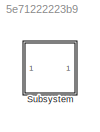
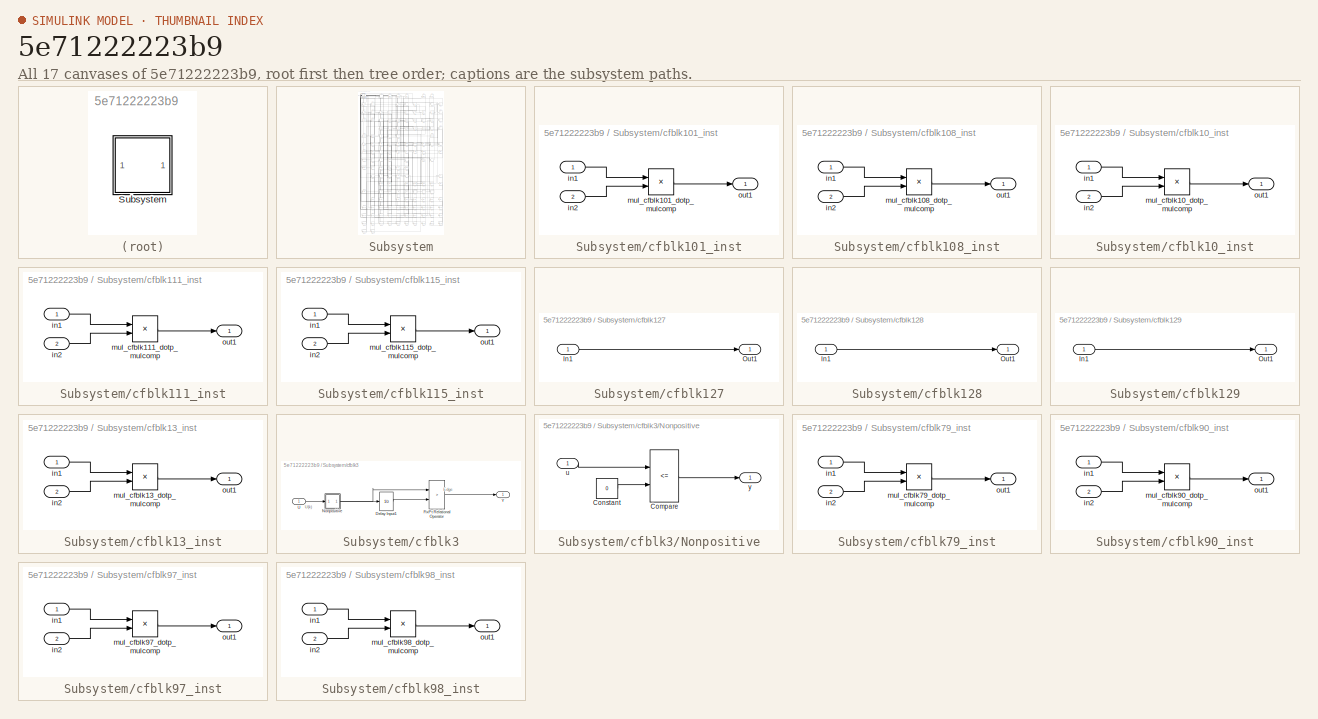
[diagram: thumbnail index - all 17 canvases of the model, root first then tree order]
MODEL slx_5e71222223b9
KIND model
CONFIG AbsTol = auto
CONFIG EnableMultiTasking = off
CONFIG FixedStep = auto
CONFIG MaxStep = auto
CONFIG MinStep = auto
CONFIG RelTol = 1e-3
CONFIG SampleTimeConstraint = Unconstrained
CONFIG SolverName = VariableStepAuto
CONFIG StartTime = 0.0
CONFIG StopTime = 10.0
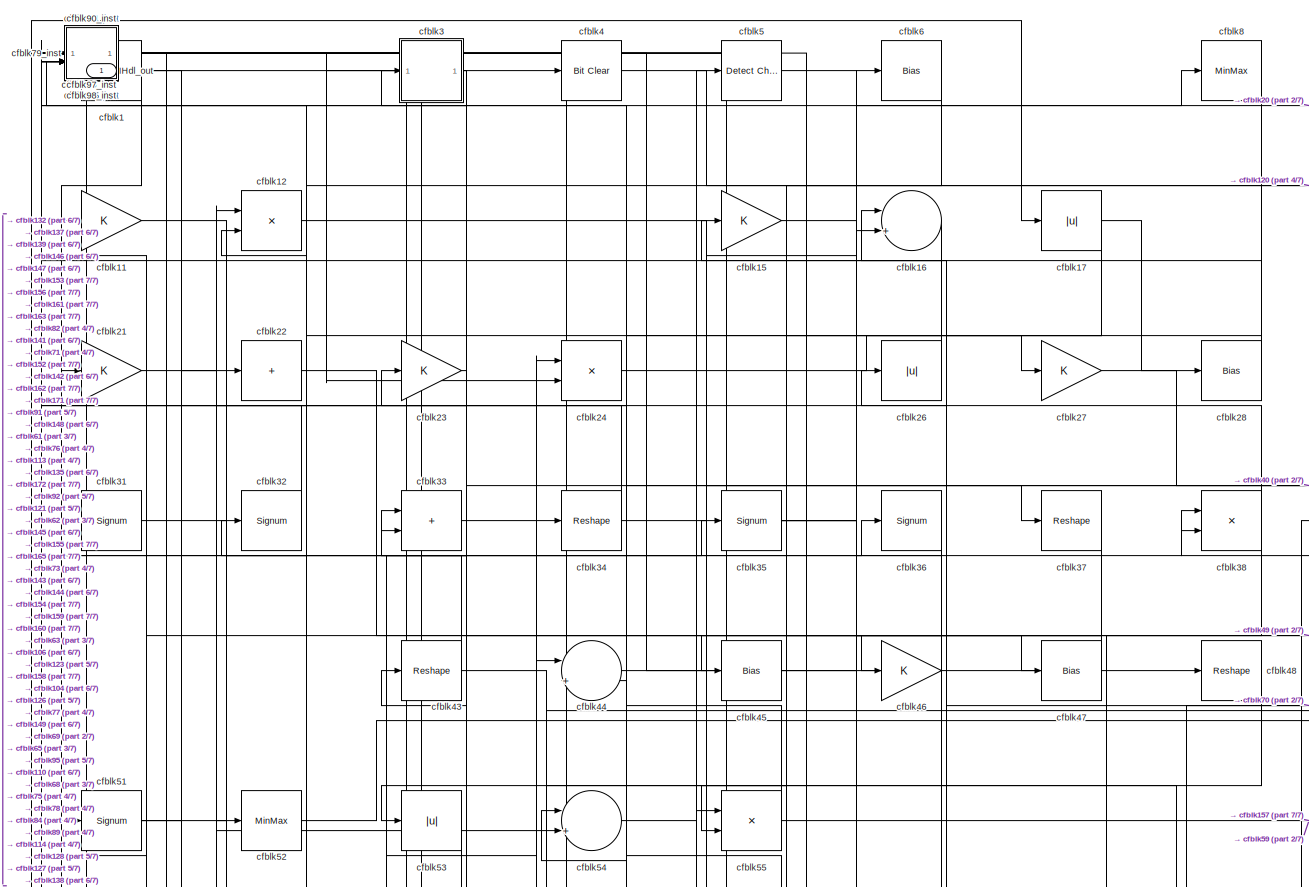
[diagram: Subsystem - part 1/7, full width, top band]
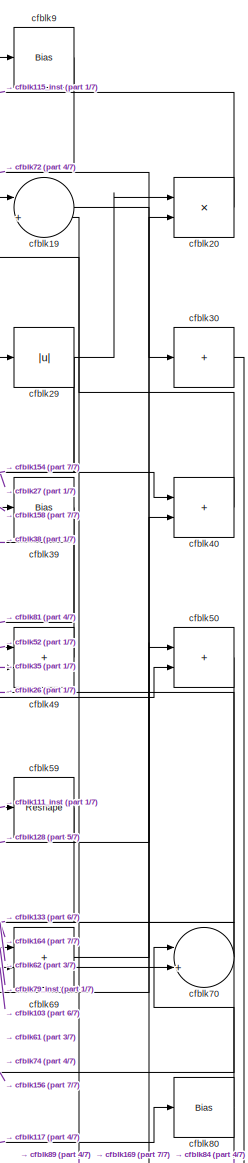
[diagram: Subsystem - part 2/7, top right region]
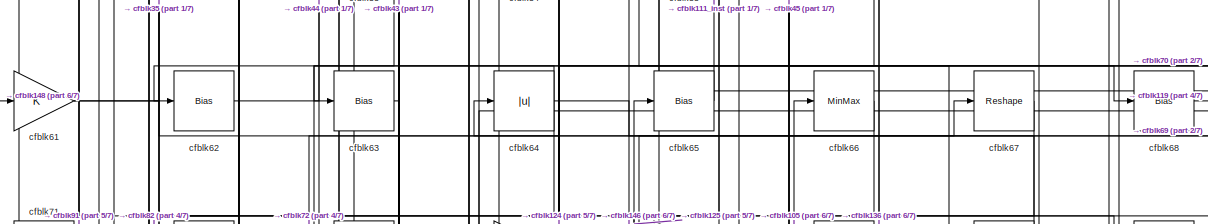
[diagram: Subsystem - part 3/7, full width, middle band]
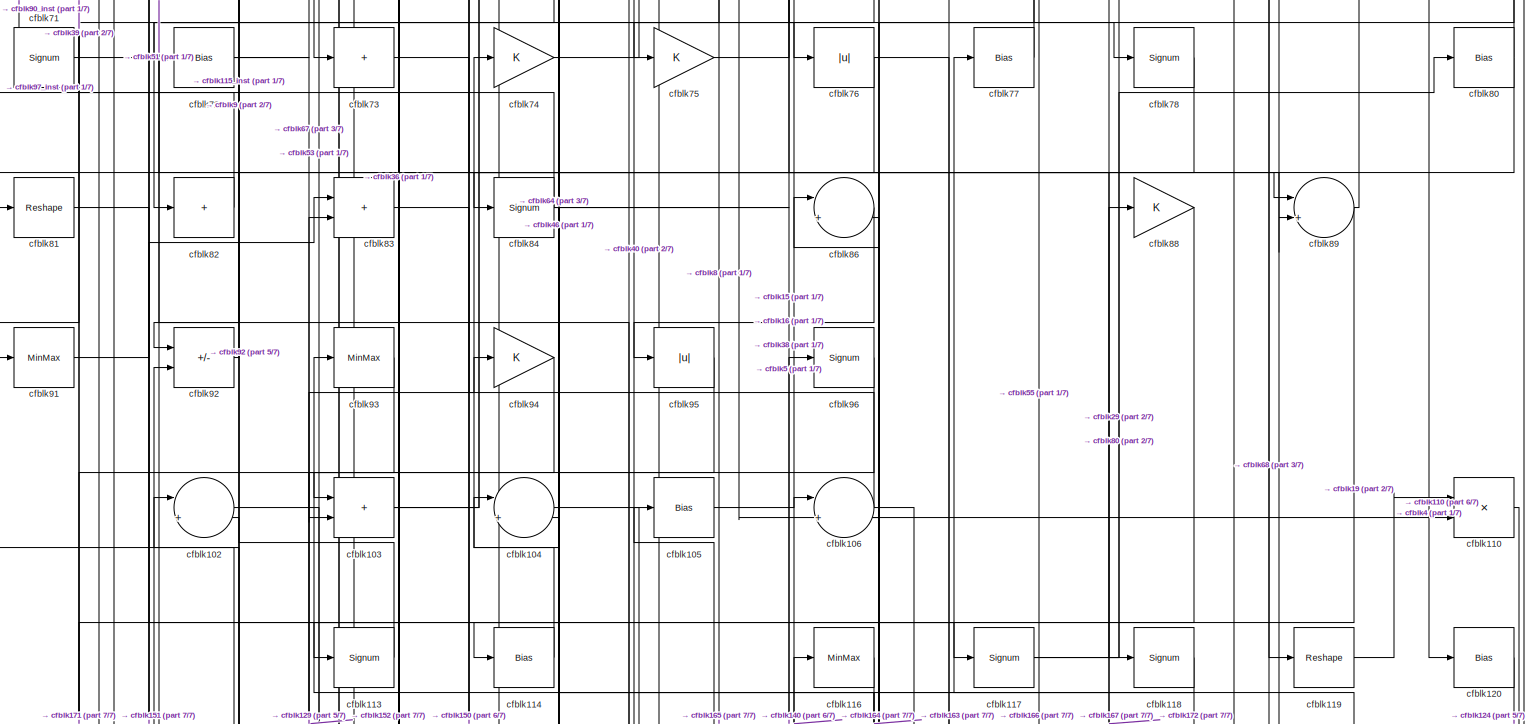
[diagram: Subsystem - part 4/7, full width, middle band]
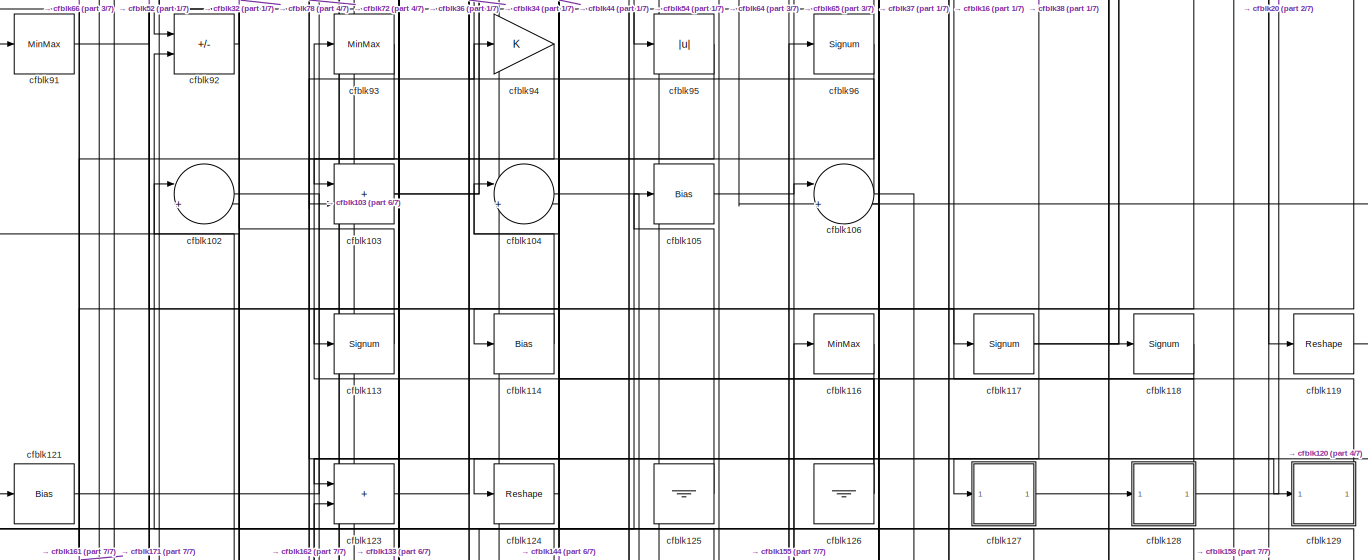
[diagram: Subsystem - part 5/7, full width, middle band]
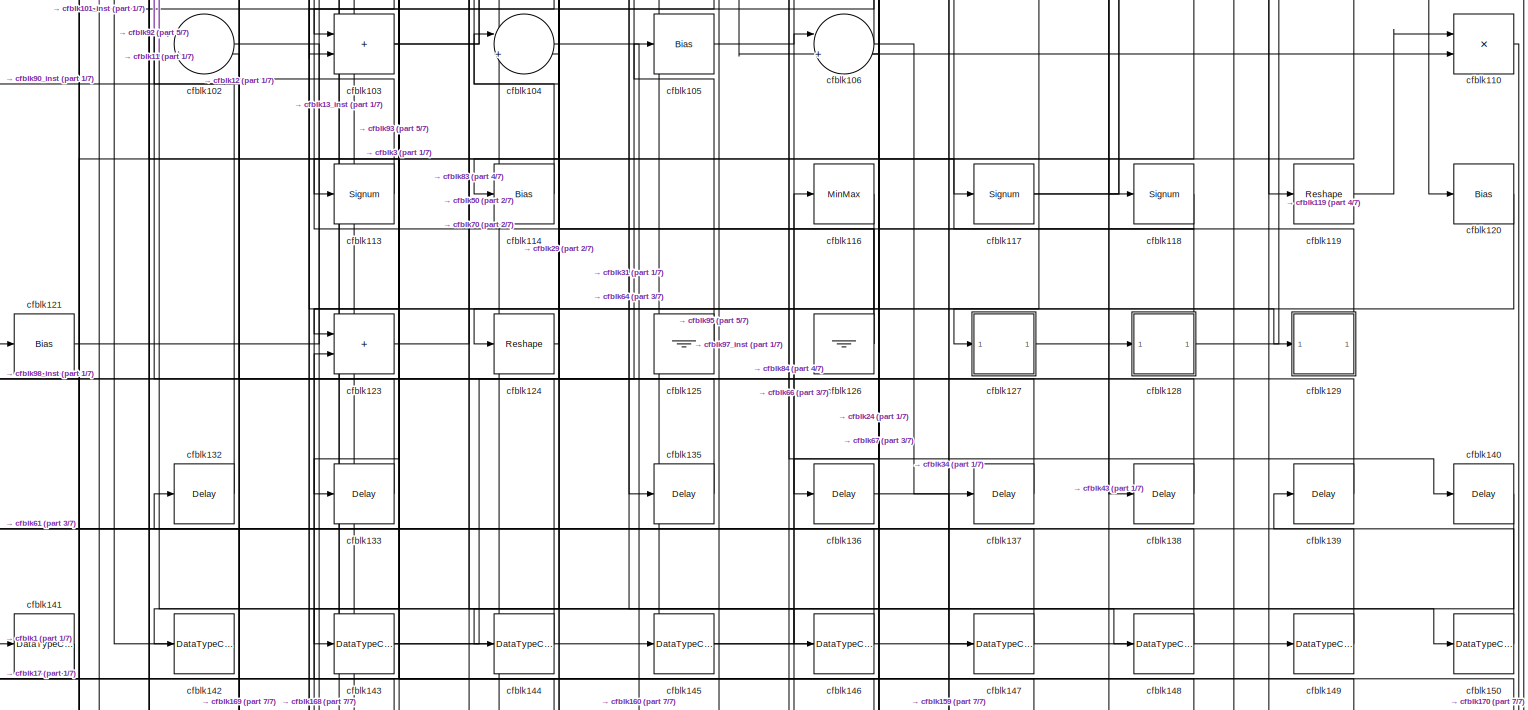
[diagram: Subsystem - part 6/7, full width, bottom band]
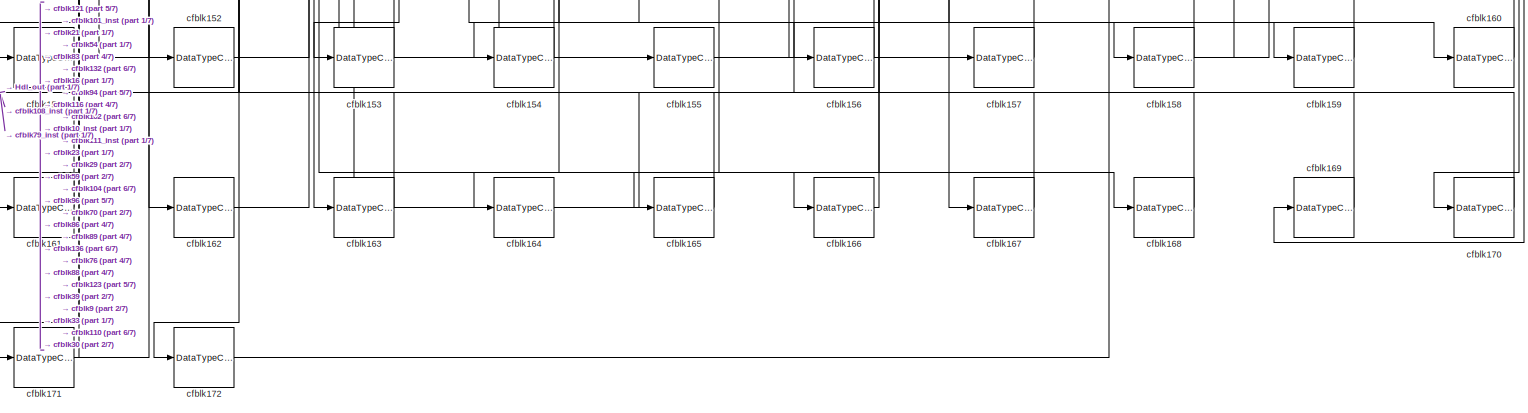
[diagram: Subsystem - part 7/7, full width, bottom band]
BLOCK [SubSystem] Subsystem
BLOCK [Outport] Subsystem/Hdl_out
  OutDataTypeStr = uint8
  SampleTime = 1
BLOCK [Reference] Subsystem/cfblk1  REF=simulink/Logic and Bit
Operations/Detect
Increase
  LibrarySourceBlock = hdlsllib/Logic and Bit\nOperations/Detect\nIncrease
  SourceBlock = simulink/Logic and Bit\nOperations/Detect\nIncrease
  SourceType = Detect Increase
BLOCK [SubSystem] Subsystem/cfblk101_inst
BLOCK [Inport] Subsystem/cfblk101_inst/in1
  OutDataTypeStr = uint8
  SampleTime = 1
BLOCK [Inport] Subsystem/cfblk101_inst/in2
  OutDataTypeStr = uint8
  Port = 2
  SampleTime = 1
BLOCK [Product] Subsystem/cfblk101_inst/mul_cfblk101_dotp_mulcomp
  Inputs = **
  OutDataTypeStr = uint8
  SampleTime = 1
BLOCK [Outport] Subsystem/cfblk101_inst/out1
  OutDataTypeStr = uint8
  SampleTime = 1
BLOCK [Sum] Subsystem/cfblk102
  Inputs = |++
  OutDataTypeStr = uint8
BLOCK [Sum] Subsystem/cfblk103
  IconShape = rectangular
  OutDataTypeStr = uint8
BLOCK [Sum] Subsystem/cfblk104
  Inputs = |++
  OutDataTypeStr = uint8
BLOCK [Bias] Subsystem/cfblk105
  Bias = 0.0
  SaturateOnIntegerOverflow = off
BLOCK [Sum] Subsystem/cfblk106
  Inputs = |++
  OutDataTypeStr = uint8
BLOCK [SubSystem] Subsystem/cfblk108_inst
BLOCK [Inport] Subsystem/cfblk108_inst/in1
  OutDataTypeStr = uint8
  SampleTime = 1
BLOCK [Inport] Subsystem/cfblk108_inst/in2
  OutDataTypeStr = uint8
  Port = 2
  SampleTime = 1
BLOCK [Product] Subsystem/cfblk108_inst/mul_cfblk108_dotp_mulcomp
  Inputs = **
  OutDataTypeStr = uint8
  SampleTime = 1
BLOCK [Outport] Subsystem/cfblk108_inst/out1
  OutDataTypeStr = uint8
  SampleTime = 1
BLOCK [SubSystem] Subsystem/cfblk10_inst
BLOCK [Inport] Subsystem/cfblk10_inst/in1
  OutDataTypeStr = uint8
  SampleTime = 1
BLOCK [Inport] Subsystem/cfblk10_inst/in2
  OutDataTypeStr = uint8
  Port = 2
  SampleTime = 1
BLOCK [Product] Subsystem/cfblk10_inst/mul_cfblk10_dotp_mulcomp
  Inputs = **
  OutDataTypeStr = uint8
  SampleTime = 1
BLOCK [Outport] Subsystem/cfblk10_inst/out1
  OutDataTypeStr = uint8
  SampleTime = 1
BLOCK [Gain] Subsystem/cfblk11
  OutDataTypeStr = uint8
BLOCK [Product] Subsystem/cfblk110
  Inputs = */
  OutDataTypeStr = uint8
  RndMeth = Zero
  SaturateOnIntegerOverflow = on
BLOCK [SubSystem] Subsystem/cfblk111_inst
BLOCK [Inport] Subsystem/cfblk111_inst/in1
  OutDataTypeStr = uint8
  SampleTime = 1
BLOCK [Inport] Subsystem/cfblk111_inst/in2
  OutDataTypeStr = uint8
  Port = 2
  SampleTime = 1
BLOCK [Product] Subsystem/cfblk111_inst/mul_cfblk111_dotp_mulcomp
  Inputs = **
  OutDataTypeStr = uint8
  SampleTime = 1
BLOCK [Outport] Subsystem/cfblk111_inst/out1
  OutDataTypeStr = uint8
  SampleTime = 1
BLOCK [Signum] Subsystem/cfblk113
BLOCK [Bias] Subsystem/cfblk114
  Bias = 0.0
  SaturateOnIntegerOverflow = off
BLOCK [SubSystem] Subsystem/cfblk115_inst
BLOCK [Inport] Subsystem/cfblk115_inst/in1
  OutDataTypeStr = uint8
  SampleTime = 1
BLOCK [Inport] Subsystem/cfblk115_inst/in2
  OutDataTypeStr = uint8
  Port = 2
  SampleTime = 1
BLOCK [Product] Subsystem/cfblk115_inst/mul_cfblk115_dotp_mulcomp
  Inputs = **
  OutDataTypeStr = uint8
  SampleTime = 1
BLOCK [Outport] Subsystem/cfblk115_inst/out1
  OutDataTypeStr = uint8
  SampleTime = 1
BLOCK [MinMax] Subsystem/cfblk116
  OutDataTypeStr = uint8
BLOCK [Signum] Subsystem/cfblk117
BLOCK [Signum] Subsystem/cfblk118
BLOCK [Reshape] Subsystem/cfblk119
BLOCK [Product] Subsystem/cfblk12
  Inputs = */
  OutDataTypeStr = uint8
  RndMeth = Zero
  SaturateOnIntegerOverflow = on
BLOCK [Bias] Subsystem/cfblk120
  Bias = 0.0
  SaturateOnIntegerOverflow = off
BLOCK [Bias] Subsystem/cfblk121
  Bias = 0.0
  SaturateOnIntegerOverflow = off
BLOCK [Sum] Subsystem/cfblk123
  IconShape = rectangular
  OutDataTypeStr = uint8
BLOCK [Reshape] Subsystem/cfblk124
BLOCK [Ground] Subsystem/cfblk125
BLOCK [Ground] Subsystem/cfblk126
BLOCK [SubSystem] Subsystem/cfblk127
BLOCK [Inport] Subsystem/cfblk127/In1
  OutDataTypeStr = uint8
  PortDimensions = 1
  SampleTime = 1
BLOCK [Outport] Subsystem/cfblk127/Out1
  SampleTime = 1
BLOCK [SubSystem] Subsystem/cfblk128
BLOCK [Inport] Subsystem/cfblk128/In1
  OutDataTypeStr = uint8
  PortDimensions = 1
  SampleTime = 1
BLOCK [Outport] Subsystem/cfblk128/Out1
  SampleTime = 1
BLOCK [SubSystem] Subsystem/cfblk129
BLOCK [Inport] Subsystem/cfblk129/In1
  OutDataTypeStr = uint8
  PortDimensions = 1
  SampleTime = 1
BLOCK [Outport] Subsystem/cfblk129/Out1
  SampleTime = 1
BLOCK [Delay] Subsystem/cfblk132
  InputPortMap = u0
  SampleTime = 1
BLOCK [Delay] Subsystem/cfblk133
  InputPortMap = u0
  SampleTime = 1
BLOCK [Delay] Subsystem/cfblk135
  InputPortMap = u0
  SampleTime = 1
BLOCK [Delay] Subsystem/cfblk136
  InputPortMap = u0
  SampleTime = 1
BLOCK [Delay] Subsystem/cfblk137
  InputPortMap = u0
  SampleTime = 1
BLOCK [Delay] Subsystem/cfblk138
  InputPortMap = u0
  SampleTime = 1
BLOCK [Delay] Subsystem/cfblk139
  InputPortMap = u0
  SampleTime = 1
BLOCK [SubSystem] Subsystem/cfblk13_inst
BLOCK [Inport] Subsystem/cfblk13_inst/in1
  OutDataTypeStr = uint8
  SampleTime = 1
BLOCK [Inport] Subsystem/cfblk13_inst/in2
  OutDataTypeStr = uint8
  Port = 2
  SampleTime = 1
BLOCK [Product] Subsystem/cfblk13_inst/mul_cfblk13_dotp_mulcomp
  Inputs = **
  OutDataTypeStr = uint8
  SampleTime = 1
BLOCK [Outport] Subsystem/cfblk13_inst/out1
  OutDataTypeStr = uint8
  SampleTime = 1
BLOCK [Delay] Subsystem/cfblk140
  InputPortMap = u0
  SampleTime = 1
BLOCK [DataTypeConversion] Subsystem/cfblk141
  OutDataTypeStr = uint8
  RndMeth = Floor
  SaturateOnIntegerOverflow = off
BLOCK [DataTypeConversion] Subsystem/cfblk142
  OutDataTypeStr = uint8
  RndMeth = Floor
  SaturateOnIntegerOverflow = off
BLOCK [DataTypeConversion] Subsystem/cfblk143
  OutDataTypeStr = uint8
  RndMeth = Floor
  SaturateOnIntegerOverflow = off
BLOCK [DataTypeConversion] Subsystem/cfblk144
  OutDataTypeStr = uint8
  RndMeth = Floor
  SaturateOnIntegerOverflow = off
BLOCK [DataTypeConversion] Subsystem/cfblk145
  OutDataTypeStr = uint8
  RndMeth = Floor
  SaturateOnIntegerOverflow = off
BLOCK [DataTypeConversion] Subsystem/cfblk146
  OutDataTypeStr = uint8
  RndMeth = Floor
  SaturateOnIntegerOverflow = off
BLOCK [DataTypeConversion] Subsystem/cfblk147
  OutDataTypeStr = uint8
  RndMeth = Floor
  SaturateOnIntegerOverflow = off
BLOCK [DataTypeConversion] Subsystem/cfblk148
  OutDataTypeStr = uint8
  RndMeth = Floor
  SaturateOnIntegerOverflow = off
BLOCK [DataTypeConversion] Subsystem/cfblk149
  OutDataTypeStr = uint8
  RndMeth = Floor
  SaturateOnIntegerOverflow = off
BLOCK [Gain] Subsystem/cfblk15
  OutDataTypeStr = uint8
BLOCK [DataTypeConversion] Subsystem/cfblk150
  OutDataTypeStr = uint8
  RndMeth = Floor
  SaturateOnIntegerOverflow = off
BLOCK [DataTypeConversion] Subsystem/cfblk151
  OutDataTypeStr = uint8
  RndMeth = Floor
  SaturateOnIntegerOverflow = off
BLOCK [DataTypeConversion] Subsystem/cfblk152
  OutDataTypeStr = uint8
  RndMeth = Floor
  SaturateOnIntegerOverflow = off
BLOCK [DataTypeConversion] Subsystem/cfblk153
  OutDataTypeStr = uint8
  RndMeth = Floor
  SaturateOnIntegerOverflow = off
BLOCK [DataTypeConversion] Subsystem/cfblk154
  OutDataTypeStr = uint8
  RndMeth = Floor
  SaturateOnIntegerOverflow = off
BLOCK [DataTypeConversion] Subsystem/cfblk155
  OutDataTypeStr = uint8
  RndMeth = Floor
  SaturateOnIntegerOverflow = off
BLOCK [DataTypeConversion] Subsystem/cfblk156
  OutDataTypeStr = uint8
  RndMeth = Floor
  SaturateOnIntegerOverflow = off
BLOCK [DataTypeConversion] Subsystem/cfblk157
  OutDataTypeStr = uint8
  RndMeth = Floor
  SaturateOnIntegerOverflow = off
BLOCK [DataTypeConversion] Subsystem/cfblk158
  OutDataTypeStr = uint8
  RndMeth = Floor
  SaturateOnIntegerOverflow = off
BLOCK [DataTypeConversion] Subsystem/cfblk159
  OutDataTypeStr = uint8
  RndMeth = Floor
  SaturateOnIntegerOverflow = off
BLOCK [Sum] Subsystem/cfblk16
  Inputs = |++
  OutDataTypeStr = uint8
BLOCK [DataTypeConversion] Subsystem/cfblk160
  OutDataTypeStr = uint8
  RndMeth = Floor
  SaturateOnIntegerOverflow = off
BLOCK [DataTypeConversion] Subsystem/cfblk161
  OutDataTypeStr = uint8
  RndMeth = Floor
  SaturateOnIntegerOverflow = off
BLOCK [DataTypeConversion] Subsystem/cfblk162
  OutDataTypeStr = uint8
  RndMeth = Floor
  SaturateOnIntegerOverflow = off
BLOCK [DataTypeConversion] Subsystem/cfblk163
  OutDataTypeStr = uint8
  RndMeth = Floor
  SaturateOnIntegerOverflow = off
BLOCK [DataTypeConversion] Subsystem/cfblk164
  OutDataTypeStr = uint8
  RndMeth = Floor
  SaturateOnIntegerOverflow = off
BLOCK [DataTypeConversion] Subsystem/cfblk165
  OutDataTypeStr = uint8
  RndMeth = Floor
  SaturateOnIntegerOverflow = off
BLOCK [DataTypeConversion] Subsystem/cfblk166
  OutDataTypeStr = uint8
  RndMeth = Floor
  SaturateOnIntegerOverflow = off
BLOCK [DataTypeConversion] Subsystem/cfblk167
  OutDataTypeStr = uint8
  RndMeth = Floor
  SaturateOnIntegerOverflow = off
BLOCK [DataTypeConversion] Subsystem/cfblk168
  OutDataTypeStr = uint8
  RndMeth = Floor
  SaturateOnIntegerOverflow = off
BLOCK [DataTypeConversion] Subsystem/cfblk169
  OutDataTypeStr = uint8
  RndMeth = Floor
  SaturateOnIntegerOverflow = off
BLOCK [Abs] Subsystem/cfblk17
  OutDataTypeStr = uint8
  SaturateOnIntegerOverflow = off
BLOCK [DataTypeConversion] Subsystem/cfblk170
  OutDataTypeStr = uint8
  RndMeth = Floor
  SaturateOnIntegerOverflow = off
BLOCK [DataTypeConversion] Subsystem/cfblk171
  OutDataTypeStr = uint8
  RndMeth = Floor
  SaturateOnIntegerOverflow = off
BLOCK [DataTypeConversion] Subsystem/cfblk172
  OutDataTypeStr = uint8
  RndMeth = Floor
  SaturateOnIntegerOverflow = off
BLOCK [Sum] Subsystem/cfblk19
  Inputs = |++
  OutDataTypeStr = uint8
BLOCK [Product] Subsystem/cfblk20
  Inputs = */
  OutDataTypeStr = uint8
  RndMeth = Zero
  SaturateOnIntegerOverflow = on
BLOCK [Gain] Subsystem/cfblk21
  OutDataTypeStr = uint8
BLOCK [Sum] Subsystem/cfblk22
  IconShape = rectangular
  Inputs = +
  OutDataTypeStr = uint8
BLOCK [Gain] Subsystem/cfblk23
  OutDataTypeStr = uint8
BLOCK [Product] Subsystem/cfblk24
  Inputs = */
  OutDataTypeStr = uint8
  RndMeth = Zero
  SaturateOnIntegerOverflow = on
BLOCK [Abs] Subsystem/cfblk26
  OutDataTypeStr = uint8
  SaturateOnIntegerOverflow = off
BLOCK [Gain] Subsystem/cfblk27
  OutDataTypeStr = uint8
BLOCK [Bias] Subsystem/cfblk28
  Bias = 0.0
  SaturateOnIntegerOverflow = off
BLOCK [Abs] Subsystem/cfblk29
  OutDataTypeStr = uint8
  SaturateOnIntegerOverflow = off
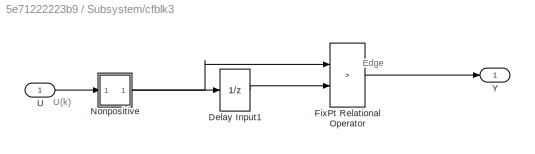
BLOCK [SubSystem] Subsystem/cfblk3
BLOCK [UnitDelay] Subsystem/cfblk3/Delay Input1
  Description = Store in Global RAM
  DisableCoverage = on
  HasFrameUpgradeWarning = on
  InitialCondition = vinit
  SampleTime = -1
BLOCK [RelationalOperator] Subsystem/cfblk3/FixPt Relational Operator
  InputSameDT = off
  Operator = >
  OutDataTypeStr = fixdt(0, 8)
  ZeroCross = off
BLOCK [SubSystem] Subsystem/cfblk3/Nonpositive
BLOCK [RelationalOperator] Subsystem/cfblk3/Nonpositive/Compare
  Operator = <=
  OutDataTypeStr = boolean
  ZeroCross = off
BLOCK [Constant] Subsystem/cfblk3/Nonpositive/Constant
  DisableCoverage = on
  OutDataTypeStr = Inherit: Inherit via back propagation
  PreserveConstantTs = on
  SampleTime = -1
  Value = 0
BLOCK [Inport] Subsystem/cfblk3/Nonpositive/u
  OutDataTypeStr = uint8
  SampleTime = 1
BLOCK [Outport] Subsystem/cfblk3/Nonpositive/y
  SampleTime = 1
BLOCK [Inport] Subsystem/cfblk3/U
  OutDataTypeStr = uint8
  SampleTime = 1
BLOCK [Outport] Subsystem/cfblk3/Y
  SampleTime = 1
BLOCK [Sum] Subsystem/cfblk30
  IconShape = rectangular
  Inputs = +
  OutDataTypeStr = uint8
BLOCK [Signum] Subsystem/cfblk31
BLOCK [Signum] Subsystem/cfblk32
BLOCK [Sum] Subsystem/cfblk33
  IconShape = rectangular
  OutDataTypeStr = uint8
BLOCK [Reshape] Subsystem/cfblk34
BLOCK [Signum] Subsystem/cfblk35
BLOCK [Signum] Subsystem/cfblk36
BLOCK [Reshape] Subsystem/cfblk37
BLOCK [Product] Subsystem/cfblk38
  Inputs = */
  OutDataTypeStr = uint8
  RndMeth = Zero
  SaturateOnIntegerOverflow = on
BLOCK [Bias] Subsystem/cfblk39
  Bias = 0.0
  SaturateOnIntegerOverflow = off
BLOCK [Reference] Subsystem/cfblk4  REF=simulink/Logic and Bit
Operations/Bit Clear
  LibrarySourceBlock = hdlsllib/Logic and Bit\nOperations/Bit Clear
  SourceBlock = simulink/Logic and Bit\nOperations/Bit Clear
  SourceType = Bit Clear
BLOCK [Sum] Subsystem/cfblk40
  IconShape = rectangular
  OutDataTypeStr = uint8
BLOCK [Reshape] Subsystem/cfblk43
BLOCK [Sum] Subsystem/cfblk44
  Inputs = |++
  OutDataTypeStr = uint8
BLOCK [Bias] Subsystem/cfblk45
  Bias = 0.0
  SaturateOnIntegerOverflow = off
BLOCK [Gain] Subsystem/cfblk46
  OutDataTypeStr = uint8
BLOCK [Bias] Subsystem/cfblk47
  Bias = 0.0
  SaturateOnIntegerOverflow = off
BLOCK [Reshape] Subsystem/cfblk48
BLOCK [Sum] Subsystem/cfblk49
  IconShape = rectangular
  OutDataTypeStr = uint8
BLOCK [Reference] Subsystem/cfblk5  REF=simulink/Logic and Bit
Operations/Detect
Change
  LibrarySourceBlock = hdlsllib/Logic and Bit\nOperations/Detect\nChange
  SourceBlock = simulink/Logic and Bit\nOperations/Detect\nChange
  SourceType = Detect Change
BLOCK [Sum] Subsystem/cfblk50
  IconShape = rectangular
  OutDataTypeStr = uint8
BLOCK [Signum] Subsystem/cfblk51
BLOCK [MinMax] Subsystem/cfblk52
  OutDataTypeStr = uint8
BLOCK [Abs] Subsystem/cfblk53
  OutDataTypeStr = uint8
  SaturateOnIntegerOverflow = off
BLOCK [Sum] Subsystem/cfblk54
  Inputs = |++
  OutDataTypeStr = uint8
BLOCK [Product] Subsystem/cfblk55
  Inputs = */
  OutDataTypeStr = uint8
  RndMeth = Zero
  SaturateOnIntegerOverflow = on
BLOCK [Reshape] Subsystem/cfblk59
BLOCK [Bias] Subsystem/cfblk6
  Bias = 0.0
  SaturateOnIntegerOverflow = off
BLOCK [Gain] Subsystem/cfblk61
  OutDataTypeStr = uint8
BLOCK [Bias] Subsystem/cfblk62
  Bias = 0.0
  SaturateOnIntegerOverflow = off
BLOCK [Bias] Subsystem/cfblk63
  Bias = 0.0
  SaturateOnIntegerOverflow = off
BLOCK [Abs] Subsystem/cfblk64
  OutDataTypeStr = uint8
  SaturateOnIntegerOverflow = off
BLOCK [Bias] Subsystem/cfblk65
  Bias = 0.0
  SaturateOnIntegerOverflow = off
BLOCK [MinMax] Subsystem/cfblk66
  OutDataTypeStr = uint8
BLOCK [Reshape] Subsystem/cfblk67
BLOCK [Bias] Subsystem/cfblk68
  Bias = 0.0
  SaturateOnIntegerOverflow = off
BLOCK [Sum] Subsystem/cfblk69
  IconShape = rectangular
  OutDataTypeStr = uint8
BLOCK [Sum] Subsystem/cfblk70
  Inputs = |++
  OutDataTypeStr = uint8
BLOCK [Signum] Subsystem/cfblk71
BLOCK [Bias] Subsystem/cfblk72
  Bias = 0.0
  SaturateOnIntegerOverflow = off
BLOCK [Sum] Subsystem/cfblk73
  IconShape = rectangular
  Inputs = +
  OutDataTypeStr = uint8
BLOCK [Gain] Subsystem/cfblk74
  OutDataTypeStr = uint8
BLOCK [Gain] Subsystem/cfblk75
  OutDataTypeStr = uint8
BLOCK [Abs] Subsystem/cfblk76
  OutDataTypeStr = uint8
  SaturateOnIntegerOverflow = off
BLOCK [Bias] Subsystem/cfblk77
  Bias = 0.0
  SaturateOnIntegerOverflow = off
BLOCK [Signum] Subsystem/cfblk78
BLOCK [SubSystem] Subsystem/cfblk79_inst
BLOCK [Inport] Subsystem/cfblk79_inst/in1
  OutDataTypeStr = uint8
  SampleTime = 1
BLOCK [Inport] Subsystem/cfblk79_inst/in2
  OutDataTypeStr = uint8
  Port = 2
  SampleTime = 1
BLOCK [Product] Subsystem/cfblk79_inst/mul_cfblk79_dotp_mulcomp
  Inputs = **
  OutDataTypeStr = uint8
  SampleTime = 1
BLOCK [Outport] Subsystem/cfblk79_inst/out1
  OutDataTypeStr = uint8
  SampleTime = 1
BLOCK [MinMax] Subsystem/cfblk8
  OutDataTypeStr = uint8
BLOCK [Bias] Subsystem/cfblk80
  Bias = 0.0
  SaturateOnIntegerOverflow = off
BLOCK [Reshape] Subsystem/cfblk81
BLOCK [Sum] Subsystem/cfblk82
  IconShape = rectangular
  Inputs = +
  OutDataTypeStr = uint8
BLOCK [Sum] Subsystem/cfblk83
  IconShape = rectangular
  OutDataTypeStr = uint8
BLOCK [Signum] Subsystem/cfblk84
BLOCK [Sum] Subsystem/cfblk86
  Inputs = |++
  OutDataTypeStr = uint8
BLOCK [Gain] Subsystem/cfblk88
  OutDataTypeStr = uint8
BLOCK [Sum] Subsystem/cfblk89
  Inputs = |++
  OutDataTypeStr = uint8
BLOCK [Bias] Subsystem/cfblk9
  Bias = 0.0
  SaturateOnIntegerOverflow = off
BLOCK [SubSystem] Subsystem/cfblk90_inst
BLOCK [Inport] Subsystem/cfblk90_inst/in1
  OutDataTypeStr = uint8
  SampleTime = 1
BLOCK [Inport] Subsystem/cfblk90_inst/in2
  OutDataTypeStr = uint8
  Port = 2
  SampleTime = 1
BLOCK [Product] Subsystem/cfblk90_inst/mul_cfblk90_dotp_mulcomp
  Inputs = **
  OutDataTypeStr = uint8
  SampleTime = 1
BLOCK [Outport] Subsystem/cfblk90_inst/out1
  OutDataTypeStr = uint8
  SampleTime = 1
BLOCK [MinMax] Subsystem/cfblk91
  OutDataTypeStr = uint8
BLOCK [Sum] Subsystem/cfblk92
  IconShape = rectangular
  Inputs = +-
  OutDataTypeStr = uint8
BLOCK [MinMax] Subsystem/cfblk93
  OutDataTypeStr = uint8
BLOCK [Gain] Subsystem/cfblk94
  OutDataTypeStr = uint8
BLOCK [Abs] Subsystem/cfblk95
  OutDataTypeStr = uint8
  SaturateOnIntegerOverflow = off
BLOCK [Signum] Subsystem/cfblk96
BLOCK [SubSystem] Subsystem/cfblk97_inst
BLOCK [Inport] Subsystem/cfblk97_inst/in1
  OutDataTypeStr = uint8
  SampleTime = 1
BLOCK [Inport] Subsystem/cfblk97_inst/in2
  OutDataTypeStr = uint8
  Port = 2
  SampleTime = 1
BLOCK [Product] Subsystem/cfblk97_inst/mul_cfblk97_dotp_mulcomp
  Inputs = **
  OutDataTypeStr = uint8
  SampleTime = 1
BLOCK [Outport] Subsystem/cfblk97_inst/out1
  OutDataTypeStr = uint8
  SampleTime = 1
BLOCK [SubSystem] Subsystem/cfblk98_inst
BLOCK [Inport] Subsystem/cfblk98_inst/in1
  OutDataTypeStr = uint8
  SampleTime = 1
BLOCK [Inport] Subsystem/cfblk98_inst/in2
  OutDataTypeStr = uint8
  Port = 2
  SampleTime = 1
BLOCK [Product] Subsystem/cfblk98_inst/mul_cfblk98_dotp_mulcomp
  Inputs = **
  OutDataTypeStr = uint8
  SampleTime = 1
BLOCK [Outport] Subsystem/cfblk98_inst/out1
  OutDataTypeStr = uint8
  SampleTime = 1
ANNOTATION Subsystem/cfblk3: Edge
ANNOTATION Subsystem/cfblk3: U(k)
LINE Subsystem/cfblk101_inst/in1:1 -> Subsystem/cfblk101_inst/mul_cfblk101_dotp_mulcomp:1
LINE Subsystem/cfblk101_inst/in2:1 -> Subsystem/cfblk101_inst/mul_cfblk101_dotp_mulcomp:2
LINE Subsystem/cfblk101_inst/mul_cfblk101_dotp_mulcomp:1 -> Subsystem/cfblk101_inst/out1:1
NET Subsystem/cfblk101_inst:1 -> Subsystem/cfblk149:1, Subsystem/cfblk152:1, Subsystem/cfblk24:2
LINE Subsystem/cfblk102:1 -> Subsystem/cfblk168:1
NET Subsystem/cfblk103:1 -> Subsystem/cfblk50:2, Subsystem/cfblk70:2
LINE Subsystem/cfblk104:1 -> Subsystem/cfblk160:1
LINE Subsystem/cfblk105:1 -> Subsystem/cfblk66:1
NET Subsystem/cfblk106:1 -> Subsystem/cfblk137:1, Subsystem/cfblk24:1
LINE Subsystem/cfblk108_inst/in1:1 -> Subsystem/cfblk108_inst/mul_cfblk108_dotp_mulcomp:1
LINE Subsystem/cfblk108_inst/in2:1 -> Subsystem/cfblk108_inst/mul_cfblk108_dotp_mulcomp:2
LINE Subsystem/cfblk108_inst/mul_cfblk108_dotp_mulcomp:1 -> Subsystem/cfblk108_inst/out1:1
LINE Subsystem/cfblk108_inst:1 -> Subsystem/cfblk48:1
LINE Subsystem/cfblk10_inst/in1:1 -> Subsystem/cfblk10_inst/mul_cfblk10_dotp_mulcomp:1
LINE Subsystem/cfblk10_inst/in2:1 -> Subsystem/cfblk10_inst/mul_cfblk10_dotp_mulcomp:2
LINE Subsystem/cfblk10_inst/mul_cfblk10_dotp_mulcomp:1 -> Subsystem/cfblk10_inst/out1:1
LINE Subsystem/cfblk10_inst:1 -> Subsystem/cfblk155:1
LINE Subsystem/cfblk110:1 -> Subsystem/cfblk170:1
LINE Subsystem/cfblk111_inst/in1:1 -> Subsystem/cfblk111_inst/mul_cfblk111_dotp_mulcomp:1
LINE Subsystem/cfblk111_inst/in2:1 -> Subsystem/cfblk111_inst/mul_cfblk111_dotp_mulcomp:2
LINE Subsystem/cfblk111_inst/mul_cfblk111_dotp_mulcomp:1 -> Subsystem/cfblk111_inst/out1:1
NET Subsystem/cfblk111_inst:1 -> Subsystem/cfblk157:1, Subsystem/cfblk59:1
LINE Subsystem/cfblk113:1 -> Subsystem/cfblk115_inst:2
LINE Subsystem/cfblk114:1 -> Subsystem/cfblk74:1
LINE Subsystem/cfblk115_inst/in1:1 -> Subsystem/cfblk115_inst/mul_cfblk115_dotp_mulcomp:1
LINE Subsystem/cfblk115_inst/in2:1 -> Subsystem/cfblk115_inst/mul_cfblk115_dotp_mulcomp:2
LINE Subsystem/cfblk115_inst/mul_cfblk115_dotp_mulcomp:1 -> Subsystem/cfblk115_inst/out1:1
LINE Subsystem/cfblk115_inst:1 -> Subsystem/cfblk31:1
LINE Subsystem/cfblk116:1 -> Subsystem/cfblk163:1
NET Subsystem/cfblk117:1 -> Subsystem/cfblk29:1, Subsystem/cfblk80:1
LINE Subsystem/cfblk118:1 -> Subsystem/cfblk77:1
LINE Subsystem/cfblk119:1 -> Subsystem/cfblk110:1
LINE Subsystem/cfblk11:1 -> Subsystem/cfblk148:1
LINE Subsystem/cfblk120:1 -> Subsystem/cfblk124:1
LINE Subsystem/cfblk121:1 -> Subsystem/cfblk36:1
LINE Subsystem/cfblk123:1 -> Subsystem/cfblk34:1
LINE Subsystem/cfblk124:1 -> Subsystem/cfblk64:1
LINE Subsystem/cfblk125:1 -> Subsystem/cfblk65:1
NET Subsystem/cfblk126:1 -> Subsystem/cfblk44:2, Subsystem/cfblk54:1
LINE Subsystem/cfblk127/In1:1 -> Subsystem/cfblk127/Out1:1
LINE Subsystem/cfblk127:1 -> Subsystem/cfblk128:1
LINE Subsystem/cfblk128/In1:1 -> Subsystem/cfblk128/Out1:1
NET Subsystem/cfblk128:1 -> Subsystem/cfblk16:1, Subsystem/cfblk20:2
LINE Subsystem/cfblk129/In1:1 -> Subsystem/cfblk129/Out1:1
LINE Subsystem/cfblk129:1 -> Subsystem/cfblk93:1
LINE Subsystem/cfblk12:1 -> Subsystem/cfblk37:1
LINE Subsystem/cfblk132:1 -> Subsystem/cfblk90_inst:2
LINE Subsystem/cfblk133:1 -> Subsystem/cfblk92:2
LINE Subsystem/cfblk135:1 -> Subsystem/cfblk12:2
LINE Subsystem/cfblk136:1 -> Subsystem/cfblk159:1
LINE Subsystem/cfblk137:1 -> Subsystem/cfblk98_inst:1
LINE Subsystem/cfblk138:1 -> Subsystem/cfblk104:1
LINE Subsystem/cfblk139:1 -> Subsystem/cfblk101_inst:1
LINE Subsystem/cfblk13_inst/in1:1 -> Subsystem/cfblk13_inst/mul_cfblk13_dotp_mulcomp:1
LINE Subsystem/cfblk13_inst/in2:1 -> Subsystem/cfblk13_inst/mul_cfblk13_dotp_mulcomp:2
LINE Subsystem/cfblk13_inst/mul_cfblk13_dotp_mulcomp:1 -> Subsystem/cfblk13_inst/out1:1
LINE Subsystem/cfblk13_inst:1 -> Subsystem/cfblk145:1
LINE Subsystem/cfblk140:1 -> Subsystem/cfblk142:1
LINE Subsystem/cfblk141:1 -> Subsystem/cfblk17:1
LINE Subsystem/cfblk142:1 -> Subsystem/cfblk1:1
LINE Subsystem/cfblk143:1 -> Subsystem/cfblk105:1
LINE Subsystem/cfblk144:1 -> Subsystem/cfblk3:1
LINE Subsystem/cfblk145:1 -> Subsystem/cfblk106:1
LINE Subsystem/cfblk146:1 -> Subsystem/cfblk13_inst:1
LINE Subsystem/cfblk147:1 -> Subsystem/cfblk13_inst:2
LINE Subsystem/cfblk148:1 -> Subsystem/cfblk61:1
LINE Subsystem/cfblk149:1 -> Subsystem/cfblk11:1
LINE Subsystem/cfblk150:1 -> Subsystem/cfblk139:1
LINE Subsystem/cfblk151:1 -> Subsystem/cfblk83:1
LINE Subsystem/cfblk152:1 -> Subsystem/cfblk83:2
LINE Subsystem/cfblk153:1 -> Subsystem/cfblk101_inst:2
LINE Subsystem/cfblk154:1 -> Subsystem/cfblk23:1
LINE Subsystem/cfblk155:1 -> Subsystem/cfblk96:1
LINE Subsystem/cfblk156:1 -> Subsystem/cfblk10_inst:1
LINE Subsystem/cfblk157:1 -> Subsystem/cfblk10_inst:2
NET Subsystem/cfblk158:1 -> Subsystem/cfblk123:2, Subsystem/cfblk39:1, Subsystem/cfblk9:1
LINE Subsystem/cfblk159:1 -> Subsystem/cfblk33:1
LINE Subsystem/cfblk15:1 -> Subsystem/cfblk78:1
LINE Subsystem/cfblk160:1 -> Subsystem/cfblk33:2
LINE Subsystem/cfblk161:1 -> Subsystem/cfblk108_inst:2
LINE Subsystem/cfblk162:1 -> Subsystem/cfblk94:1
LINE Subsystem/cfblk163:1 -> Subsystem/cfblk79_inst:1
LINE Subsystem/cfblk164:1 -> Subsystem/cfblk116:1
NET Subsystem/cfblk165:1 -> Subsystem/Hdl_out:1, Subsystem/cfblk79_inst:2
LINE Subsystem/cfblk166:1 -> Subsystem/cfblk86:1
LINE Subsystem/cfblk167:1 -> Subsystem/cfblk86:2
LINE Subsystem/cfblk168:1 -> Subsystem/cfblk132:1
LINE Subsystem/cfblk169:1 -> Subsystem/cfblk102:1
LINE Subsystem/cfblk16:1 -> Subsystem/cfblk172:1
LINE Subsystem/cfblk170:1 -> Subsystem/cfblk102:2
NET Subsystem/cfblk171:1 -> Subsystem/cfblk121:1, Subsystem/cfblk54:2
LINE Subsystem/cfblk172:1 -> Subsystem/cfblk88:1
NET Subsystem/cfblk17:1 -> Subsystem/cfblk104:2, Subsystem/cfblk106:2, Subsystem/cfblk28:1
LINE Subsystem/cfblk19:1 -> Subsystem/cfblk30:1
LINE Subsystem/cfblk1:1 -> Subsystem/cfblk141:1
LINE Subsystem/cfblk20:1 -> Subsystem/cfblk115_inst:1
LINE Subsystem/cfblk21:1 -> Subsystem/cfblk162:1
LINE Subsystem/cfblk22:1 -> Subsystem/cfblk46:1
LINE Subsystem/cfblk23:1 -> Subsystem/cfblk153:1
LINE Subsystem/cfblk24:1 -> Subsystem/cfblk27:1
LINE Subsystem/cfblk26:1 -> Subsystem/cfblk108_inst:1
LINE Subsystem/cfblk27:1 -> Subsystem/cfblk40:1
LINE Subsystem/cfblk28:1 -> Subsystem/cfblk15:1
NET Subsystem/cfblk29:1 -> Subsystem/cfblk103:1, Subsystem/cfblk154:1, Subsystem/cfblk20:1
LINE Subsystem/cfblk30:1 -> Subsystem/cfblk169:1
LINE Subsystem/cfblk31:1 -> Subsystem/cfblk135:1
LINE Subsystem/cfblk32:1 -> Subsystem/cfblk12:1
LINE Subsystem/cfblk33:1 -> Subsystem/cfblk158:1
NET Subsystem/cfblk34:1 -> Subsystem/cfblk147:1, Subsystem/cfblk98_inst:2
NET Subsystem/cfblk35:1 -> Subsystem/cfblk47:1, Subsystem/cfblk49:2, Subsystem/cfblk6:1
LINE Subsystem/cfblk36:1 -> Subsystem/cfblk113:1
LINE Subsystem/cfblk37:1 -> Subsystem/cfblk95:1
NET Subsystem/cfblk38:1 -> Subsystem/cfblk127:1, Subsystem/cfblk90_inst:1
LINE Subsystem/cfblk39:1 -> Subsystem/cfblk81:1
LINE Subsystem/cfblk3:1 -> Subsystem/cfblk143:1
LINE Subsystem/cfblk40:1 -> Subsystem/cfblk19:2
NET Subsystem/cfblk43:1 -> Subsystem/cfblk138:1, Subsystem/cfblk97_inst:2
LINE Subsystem/cfblk44:1 -> Subsystem/cfblk8:1
LINE Subsystem/cfblk45:1 -> Subsystem/cfblk68:1
NET Subsystem/cfblk46:1 -> Subsystem/cfblk111_inst:1, Subsystem/cfblk114:1
LINE Subsystem/cfblk47:1 -> Subsystem/cfblk45:1
LINE Subsystem/cfblk48:1 -> Subsystem/cfblk53:1
LINE Subsystem/cfblk49:1 -> Subsystem/cfblk38:1
LINE Subsystem/cfblk4:1 -> Subsystem/cfblk120:1
LINE Subsystem/cfblk50:1 -> Subsystem/cfblk133:1
NET Subsystem/cfblk51:1 -> Subsystem/cfblk22:1, Subsystem/cfblk76:1
LINE Subsystem/cfblk52:1 -> Subsystem/cfblk49:1
LINE Subsystem/cfblk53:1 -> Subsystem/cfblk73:1
LINE Subsystem/cfblk54:1 -> Subsystem/cfblk5:1
LINE Subsystem/cfblk55:1 -> Subsystem/cfblk21:1
LINE Subsystem/cfblk59:1 -> Subsystem/cfblk164:1
LINE Subsystem/cfblk5:1 -> Subsystem/cfblk89:2
NET Subsystem/cfblk61:1 -> Subsystem/cfblk35:1, Subsystem/cfblk69:2
LINE Subsystem/cfblk62:1 -> Subsystem/cfblk44:1
LINE Subsystem/cfblk63:1 -> Subsystem/cfblk43:1
NET Subsystem/cfblk64:1 -> Subsystem/cfblk146:1, Subsystem/cfblk63:1, Subsystem/cfblk82:1
LINE Subsystem/cfblk65:1 -> Subsystem/cfblk111_inst:2
LINE Subsystem/cfblk66:1 -> Subsystem/cfblk91:1
LINE Subsystem/cfblk67:1 -> Subsystem/cfblk136:1
LINE Subsystem/cfblk68:1 -> Subsystem/cfblk119:1
LINE Subsystem/cfblk69:1 -> Subsystem/cfblk50:1
LINE Subsystem/cfblk6:1 -> Subsystem/cfblk55:2
NET Subsystem/cfblk70:1 -> Subsystem/cfblk156:1, Subsystem/cfblk26:1, Subsystem/cfblk62:1
LINE Subsystem/cfblk71:1 -> Subsystem/cfblk118:1
NET Subsystem/cfblk72:1 -> Subsystem/cfblk129:1, Subsystem/cfblk67:1
LINE Subsystem/cfblk73:1 -> Subsystem/cfblk89:1
LINE Subsystem/cfblk74:1 -> Subsystem/cfblk40:2
LINE Subsystem/cfblk75:1 -> Subsystem/cfblk16:2
NET Subsystem/cfblk76:1 -> Subsystem/cfblk151:1, Subsystem/cfblk167:1
LINE Subsystem/cfblk77:1 -> Subsystem/cfblk55:1
LINE Subsystem/cfblk78:1 -> Subsystem/cfblk92:1
LINE Subsystem/cfblk79_inst/in1:1 -> Subsystem/cfblk79_inst/mul_cfblk79_dotp_mulcomp:1
LINE Subsystem/cfblk79_inst/in2:1 -> Subsystem/cfblk79_inst/mul_cfblk79_dotp_mulcomp:2
LINE Subsystem/cfblk79_inst/mul_cfblk79_dotp_mulcomp:1 -> Subsystem/cfblk79_inst/out1:1
LINE Subsystem/cfblk79_inst:1 -> Subsystem/cfblk69:1
NET Subsystem/cfblk80:1 -> Subsystem/cfblk70:1, Subsystem/cfblk84:1
LINE Subsystem/cfblk81:1 -> Subsystem/cfblk117:1
LINE Subsystem/cfblk82:1 -> Subsystem/cfblk97_inst:1
LINE Subsystem/cfblk83:1 -> Subsystem/cfblk150:1
NET Subsystem/cfblk84:1 -> Subsystem/cfblk140:1, Subsystem/cfblk38:2, Subsystem/cfblk51:1
LINE Subsystem/cfblk86:1 -> Subsystem/cfblk165:1
LINE Subsystem/cfblk88:1 -> Subsystem/cfblk171:1
NET Subsystem/cfblk89:1 -> Subsystem/cfblk166:1, Subsystem/cfblk19:1
LINE Subsystem/cfblk8:1 -> Subsystem/cfblk75:1
LINE Subsystem/cfblk90_inst/in1:1 -> Subsystem/cfblk90_inst/mul_cfblk90_dotp_mulcomp:1
LINE Subsystem/cfblk90_inst/in2:1 -> Subsystem/cfblk90_inst/mul_cfblk90_dotp_mulcomp:2
LINE Subsystem/cfblk90_inst/mul_cfblk90_dotp_mulcomp:1 -> Subsystem/cfblk90_inst/out1:1
LINE Subsystem/cfblk90_inst:1 -> Subsystem/cfblk71:1
LINE Subsystem/cfblk91:1 -> Subsystem/cfblk52:1
LINE Subsystem/cfblk92:1 -> Subsystem/cfblk32:1
LINE Subsystem/cfblk93:1 -> Subsystem/cfblk103:2
LINE Subsystem/cfblk94:1 -> Subsystem/cfblk161:1
LINE Subsystem/cfblk95:1 -> Subsystem/cfblk144:1
LINE Subsystem/cfblk96:1 -> Subsystem/cfblk123:1
LINE Subsystem/cfblk97_inst/in1:1 -> Subsystem/cfblk97_inst/mul_cfblk97_dotp_mulcomp:1
LINE Subsystem/cfblk97_inst/in2:1 -> Subsystem/cfblk97_inst/mul_cfblk97_dotp_mulcomp:2
LINE Subsystem/cfblk97_inst/mul_cfblk97_dotp_mulcomp:1 -> Subsystem/cfblk97_inst/out1:1
LINE Subsystem/cfblk97_inst:1 -> Subsystem/cfblk110:2
LINE Subsystem/cfblk98_inst/in1:1 -> Subsystem/cfblk98_inst/mul_cfblk98_dotp_mulcomp:1
LINE Subsystem/cfblk98_inst/in2:1 -> Subsystem/cfblk98_inst/mul_cfblk98_dotp_mulcomp:2
LINE Subsystem/cfblk98_inst/mul_cfblk98_dotp_mulcomp:1 -> Subsystem/cfblk98_inst/out1:1
LINE Subsystem/cfblk98_inst:1 -> Subsystem/cfblk4:1
LINE Subsystem/cfblk9:1 -> Subsystem/cfblk72:1
note: NET lines group one-source signal fan-out (src -> all destinations, sorted); 1:1 wires keep LINE
